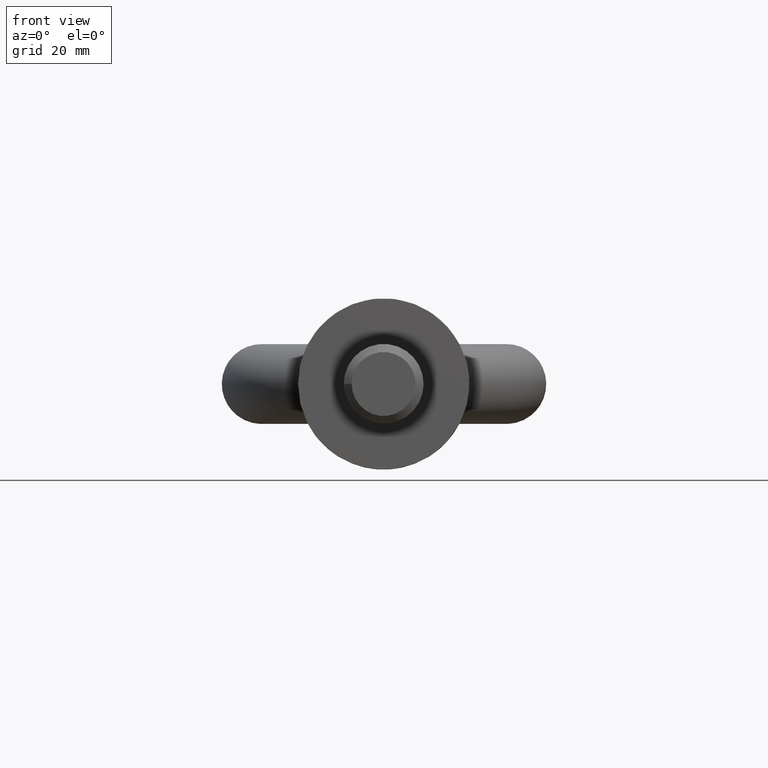
[diagram: clean part render]
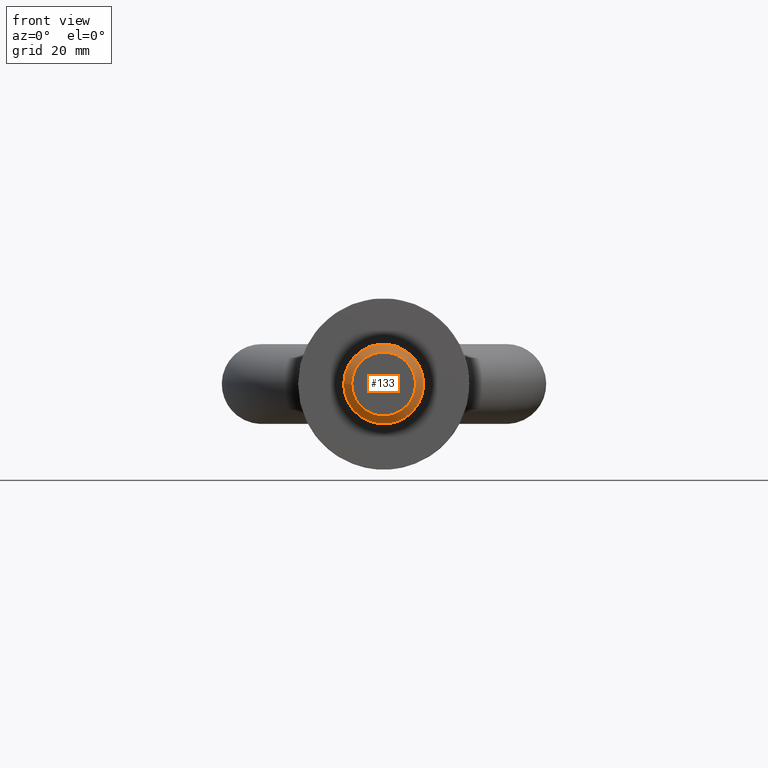
[diagram: same view with one face highlighted and labeled with its STEP entity id]
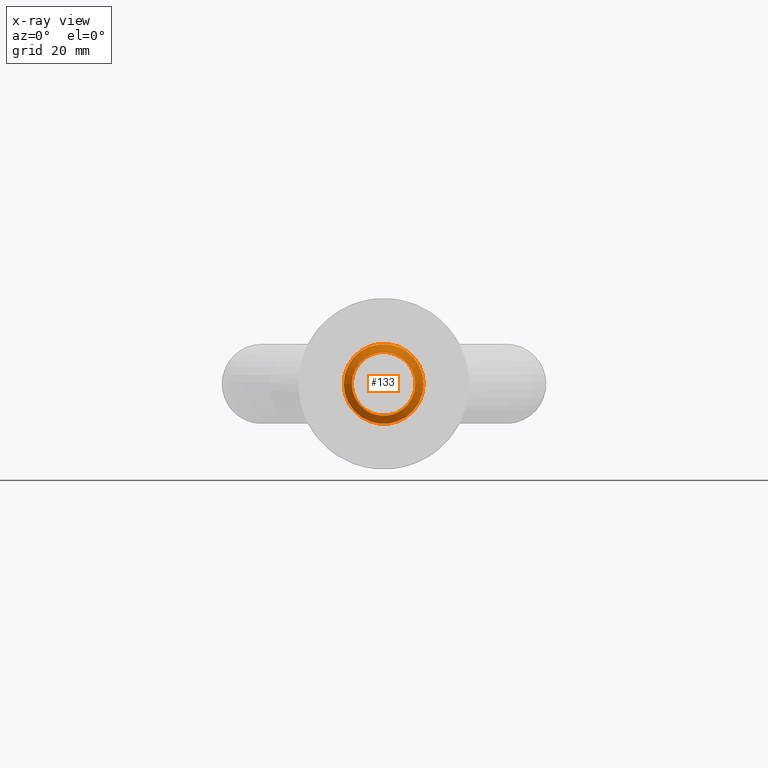
[diagram: x-ray of the same camera — body ghosted, the highlighted face saturated]
A machine part, front view. The second image highlights one B-rep face of the part: STEP entity #133.
The next image is the same camera in x-ray: the body ghosted, the highlighted face saturated — about 0% of this face is hidden behind the body in this view.
In plain terms, the highlighted conical surface has half-angle 45 deg.
Its self-contained STEP definition (entity closure, byte-faithful):
#70=CONICAL_SURFACE('',#524,7.,45.);
#80=FACE_BOUND('',#196,.T.);
#81=FACE_BOUND('',#197,.T.);
#133=ADVANCED_FACE('',(#80,#81),#70,.T.);
#196=EDGE_LOOP('',(#368));
#197=EDGE_LOOP('',(#369));
#222=CIRCLE('',#489,5.6);
#223=CIRCLE('',#491,7.);
#368=ORIENTED_EDGE('',*,*,#430,.F.);
#369=ORIENTED_EDGE('',*,*,#431,.F.);
#386=VERTEX_POINT('',#845);
#387=VERTEX_POINT('',#848);
#430=EDGE_CURVE('',#386,#386,#222,.T.);
#431=EDGE_CURVE('',#387,#387,#223,.T.);
#489=AXIS2_PLACEMENT_3D('',#844,#555,#556);
#491=AXIS2_PLACEMENT_3D('',#847,#559,#560);
#524=AXIS2_PLACEMENT_3D('',#1238,#625,#626);
#555=DIRECTION('',(-2.77823198355395E-18,-1.,0.));
#556=DIRECTION('',(-1.,0.,0.));
#559=DIRECTION('',(2.77823198355395E-18,1.,0.));
#560=DIRECTION('',(-1.,0.,0.));
#625=DIRECTION('',(2.77823198355395E-18,1.,0.));
#626=DIRECTION('',(-1.,2.75626371555401E-17,0.));
#844=CARTESIAN_POINT('',(-1.69472150996791E-16,-40.,0.));
#845=CARTESIAN_POINT('',(-5.6,-40.,0.));
#847=CARTESIAN_POINT('',(-1.65582626219815E-16,-38.6,0.));
#848=CARTESIAN_POINT('',(-7.,-38.6,0.));
#1238=CARTESIAN_POINT('',(-1.65582626219815E-16,-38.6,0.));